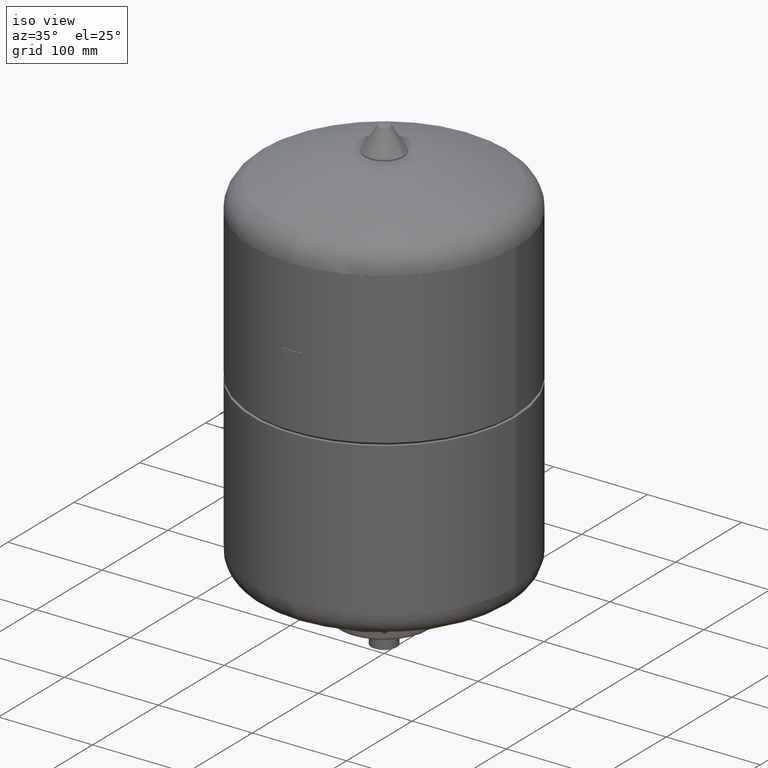
[diagram: clean part render]
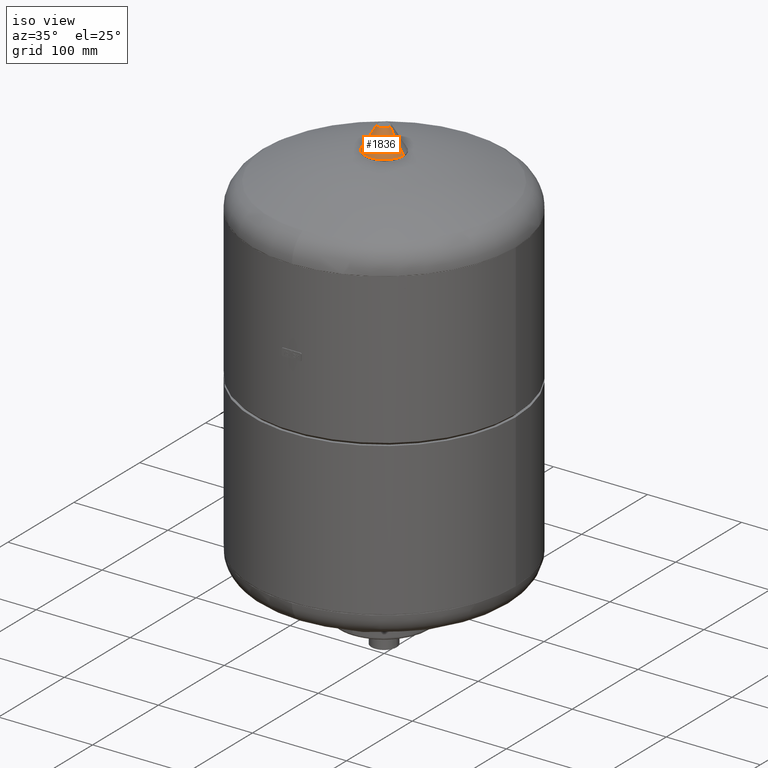
[diagram: same view with one face highlighted and labeled with its STEP entity id]
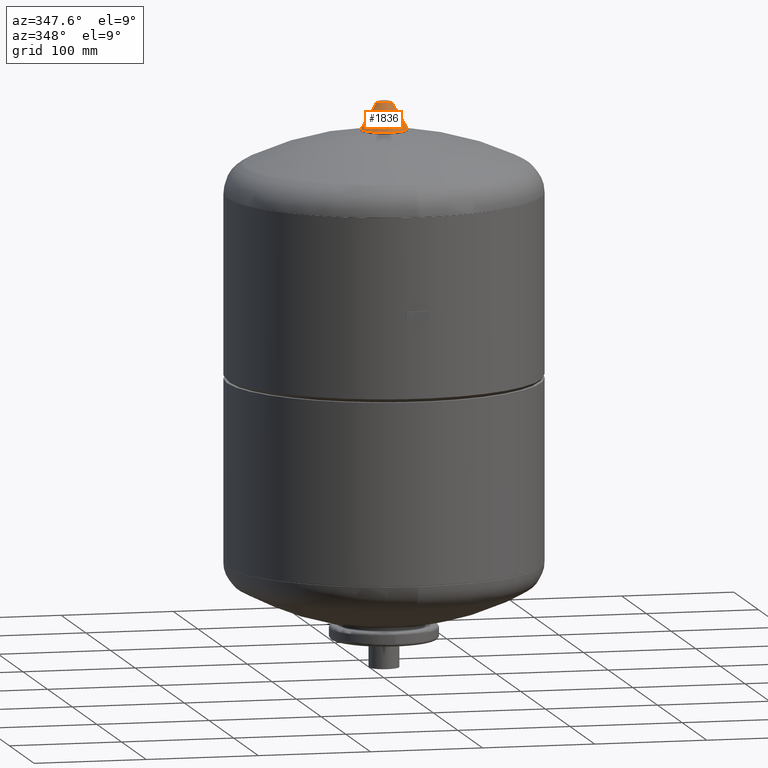
[diagram: same view with one face highlighted and labeled with its STEP entity id]
A machine part, iso view. The second image highlights one B-rep face of the part: STEP entity #1836.
A second angle (auxiliary view) of the same face is appended — the face is thin or edge-on in the first view.
In plain terms, the highlighted conical surface has half-angle 30.964 deg.
Its self-contained STEP definition (entity closure, byte-faithful):
#1768=CARTESIAN_POINT('',(-20.614128183429354,0.0,474.643119694284450));
#1769=VERTEX_POINT('',#1768);
#1786=CARTESIAN_POINT('',(20.614128183429351,-2.524419E-015,474.643119694284450));
#1787=VERTEX_POINT('',#1786);
#1795=CARTESIAN_POINT('',(-7.116202E-015,0.0,474.643119694284450));
#1796=DIRECTION('',(0.0,0.0,-1.0));
#1797=DIRECTION('',(-1.0,0.0,0.0));
#1798=AXIS2_PLACEMENT_3D('',#1795,#1796,#1797);
#1799=CIRCLE('',#1798,20.614128183429351);
#1800=EDGE_CURVE('',#1787,#1769,#1799,.T.);
#1805=CARTESIAN_POINT('',(-3.646756E-015,0.0,486.518119694284450));
#1806=DIRECTION('',(-2.921640E-016,0.0,-1.0));
#1807=DIRECTION('',(-1.0,0.0,0.0));
#1808=AXIS2_PLACEMENT_3D('',#1805,#1806,#1807);
#1809=CONICAL_SURFACE('',#1808,13.489128183429353,30.963756532073528);
#1810=CARTESIAN_POINT('',(-6.364128183429356,0.0,498.393119694284450));
#1811=VERTEX_POINT('',#1810);
#1812=CARTESIAN_POINT('',(-20.614128183429354,0.0,474.643119694284450));
#1813=DIRECTION('',(0.514495755427526,0.0,0.857492925712544));
#1814=VECTOR('',#1813,27.697021500515177);
#1815=LINE('',#1812,#1814);
#1816=EDGE_CURVE('',#1769,#1811,#1815,.T.);
#1817=ORIENTED_EDGE('',*,*,#1816,.F.);
#1818=ORIENTED_EDGE('',*,*,#1800,.F.);
#1819=CARTESIAN_POINT('',(6.364128183429356,-7.793552E-016,498.393119694284390));
#1820=VERTEX_POINT('',#1819);
#1821=CARTESIAN_POINT('',(20.614128183429351,-2.524419E-015,474.643119694284450));
#1822=DIRECTION('',(-0.514495755427527,6.300548E-017,0.857492925712544));
#1823=VECTOR('',#1822,27.697021500515127);
#1824=LINE('',#1821,#1823);
#1825=EDGE_CURVE('',#1787,#1820,#1824,.T.);
#1826=ORIENTED_EDGE('',*,*,#1825,.T.);
#1827=CARTESIAN_POINT('',(-1.773085E-016,0.0,498.393119694284450));
#1828=DIRECTION('',(0.0,0.0,-1.0));
#1829=DIRECTION('',(-1.0,0.0,0.0));
#1830=AXIS2_PLACEMENT_3D('',#1827,#1828,#1829);
#1831=CIRCLE('',#1830,6.364128183429356);
#1832=EDGE_CURVE('',#1820,#1811,#1831,.T.);
#1833=ORIENTED_EDGE('',*,*,#1832,.T.);
#1834=EDGE_LOOP('',(#1817,#1818,#1826,#1833));
#1835=FACE_OUTER_BOUND('',#1834,.T.);
#1836=ADVANCED_FACE('',(#1835),#1809,.T.);